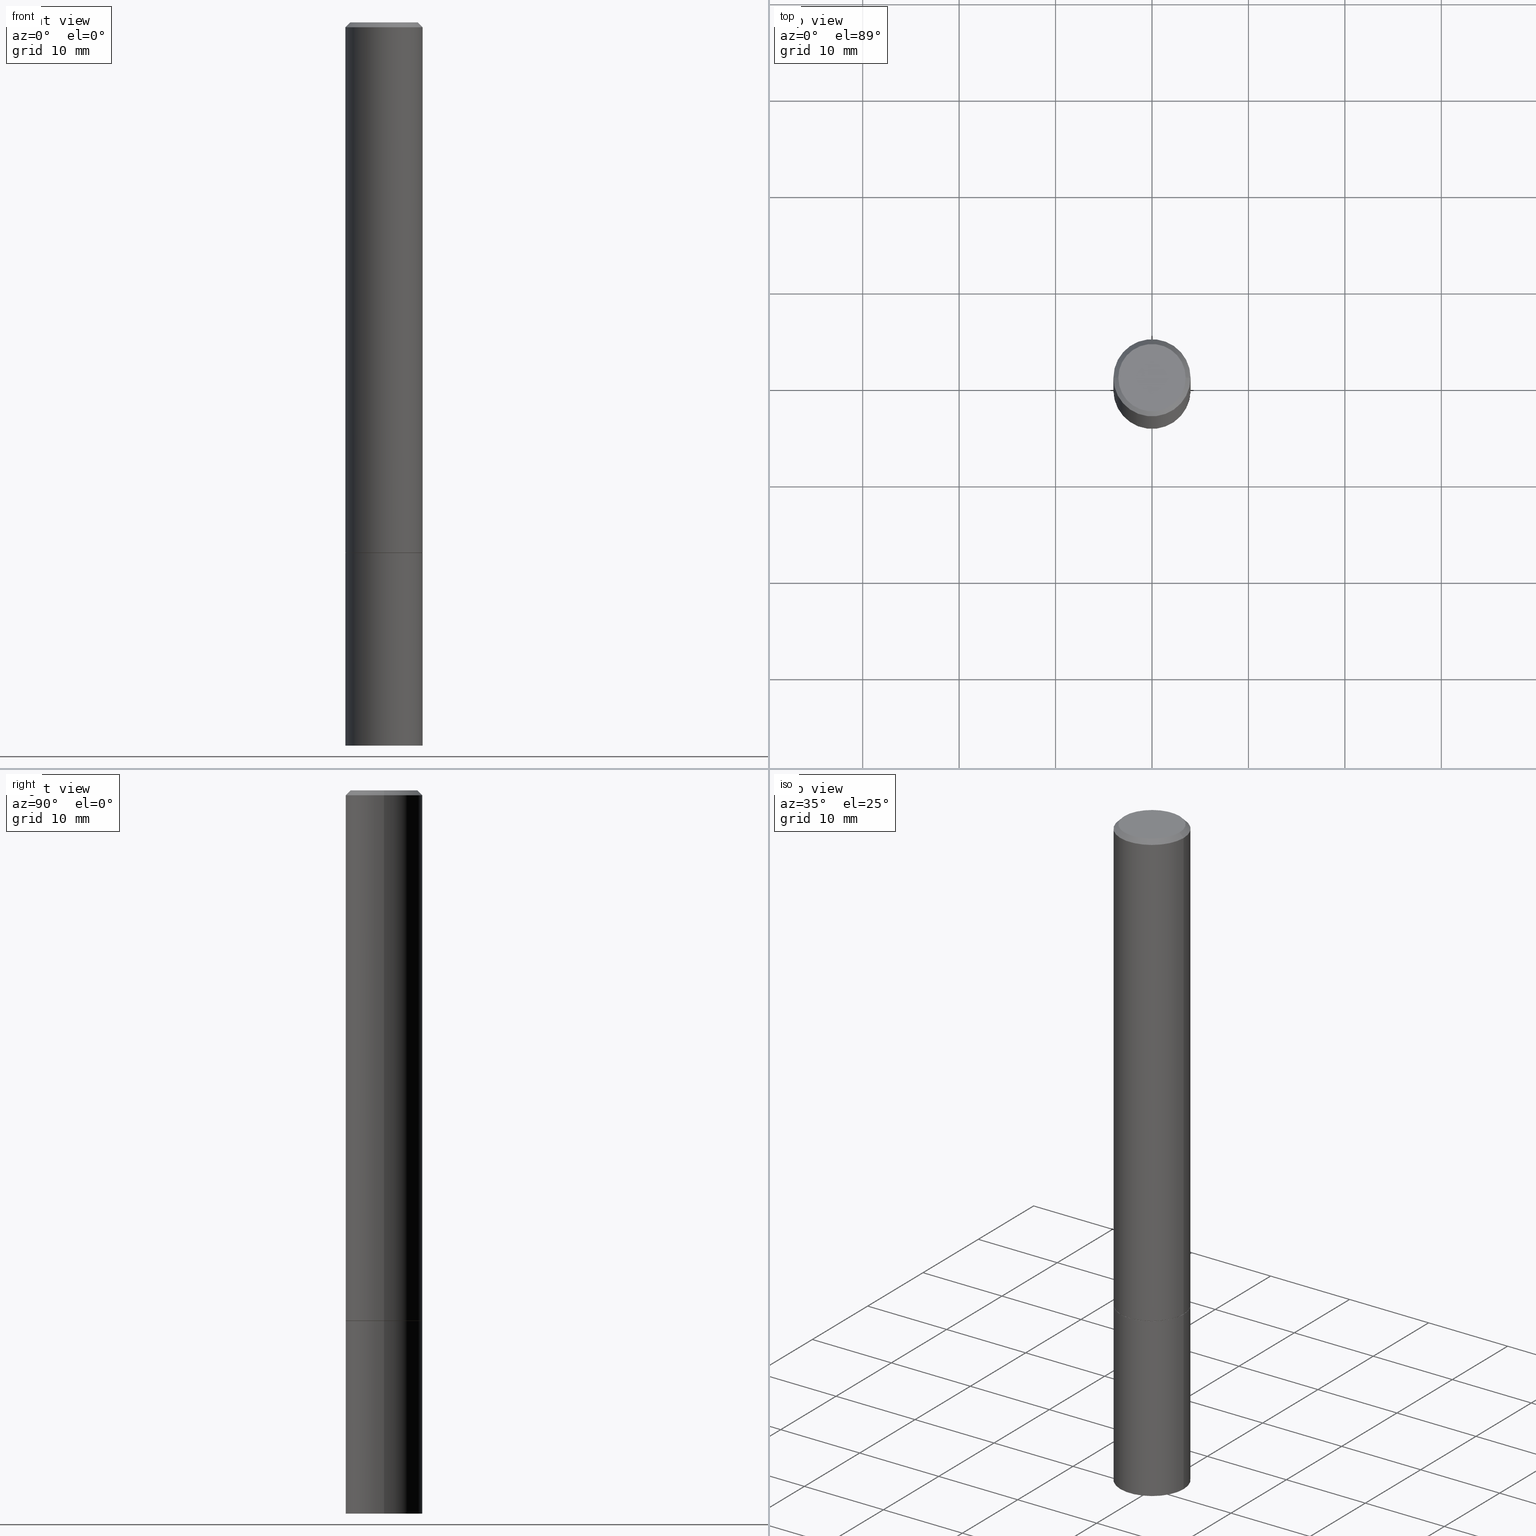
[diagram: canonical four-view strip — front | top / right | iso, engineering-drawing reading convention]
A machine part, canonical four-view strip (front | top / right | iso — engineering-drawing reading convention). The complete STEP part file that produces these views, byte-faithful:
ISO-10303-21;
HEADER;
FILE_DESCRIPTION (( 'STEP AP203' ),
    '1' );
FILE_NAME ('74349.STEP',
    '2024-02-29T08:58:05',
    ( '' ),
    ( '' ),
    'SwSTEP 2.0',
    'SolidWorks 2023',
    '' );
FILE_SCHEMA (( 'CONFIG_CONTROL_DESIGN' ));
ENDSEC;

DATA;
#1 = DATE_AND_TIME ( #186, #85 ) ;
#2 = CC_DESIGN_PERSON_AND_ORGANIZATION_ASSIGNMENT ( #351, #265, ( #4 ) ) ;
#3 = CARTESIAN_POINT ( 'NONE',  ( 0.1575000000000000011, -8.660270312866534114E-15, -2.165399999999999991 ) ) ;
#4 = PRODUCT ( '74349', '74349', '', ( #341 ) ) ;
#5 = CIRCLE ( 'NONE', #336, 0.1374999999999997058 ) ;
#6 = EDGE_CURVE ( 'NONE', #172, #357, #349, .T. ) ;
#7 = AXIS2_PLACEMENT_3D ( 'NONE', #13, #110, #235 ) ;
#8 = EDGE_LOOP ( 'NONE', ( #332, #84 ) ) ;
#9 = DIMENSIONAL_EXPONENTS ( 1.000000000000000000, 0.000000000000000000, 0.000000000000000000, 0.000000000000000000, 0.000000000000000000, 0.000000000000000000, 0.000000000000000000 ) ;
#10 = LINE ( 'NONE', #278, #262 ) ;
#11 = DIRECTION ( 'NONE',  ( 1.000000000000000000, -6.982962677686265922E-15, 0.000000000000000000 ) ) ;
#12 = EDGE_LOOP ( 'NONE', ( #157, #55 ) ) ;
#13 = CARTESIAN_POINT ( 'NONE',  ( 0.000000000000000000, 0.000000000000000000, 0.000000000000000000 ) ) ;
#14 = AXIS2_PLACEMENT_3D ( 'NONE', #127, #251, #131 ) ;
#15 = DIRECTION ( 'NONE',  ( -2.445468806185136597E-29, 3.491481338843145583E-15, 1.000000000000000000 ) ) ;
#16 = CARTESIAN_POINT ( 'NONE',  ( 0.1575000000000000011, -1.099816621735586889E-15, 7.679978421878598033E-30 ) ) ;
#17 = ORGANIZATION ( 'UNSPECIFIED', 'UNSPECIFIED', '' ) ;
#18 = FACE_OUTER_BOUND ( 'NONE', #360, .T. ) ;
#19 = COORDINATED_UNIVERSAL_TIME_OFFSET ( 5, 0, .BEHIND. ) ;
#20 = ADVANCED_FACE ( 'NONE', ( #199 ), #282, .F. ) ;
#21 = DIRECTION ( 'NONE',  ( -2.445468806185136597E-29, 3.491481338843145583E-15, 1.000000000000000000 ) ) ;
#22 = APPROVAL_ROLE ( '' ) ;
#23 = DIRECTION ( 'NONE',  ( -2.445468806185136597E-29, 3.491481338843145583E-15, 1.000000000000000000 ) ) ;
#24 = APPROVAL_DATE_TIME ( #264, #149 ) ;
#25 = ORIENTED_EDGE ( 'NONE', *, *, #223, .F. ) ;
#26 = ORIENTED_EDGE ( 'NONE', *, *, #118, .F. ) ;
#27 = EDGE_CURVE ( 'NONE', #113, #150, #318, .T. ) ;
#28 = APPROVAL_DATE_TIME ( #356, #165 ) ;
#29 = ORIENTED_EDGE ( 'NONE', *, *, #179, .T. ) ;
#30 = LINE ( 'NONE', #36, #169 ) ;
#31 = ADVANCED_FACE ( 'NONE', ( #168 ), #41, .T. ) ;
#32 = DIRECTION ( 'NONE',  ( 2.445468806185136597E-29, -3.491481338843145583E-15, -1.000000000000000000 ) ) ;
#33 = ORIENTED_EDGE ( 'NONE', *, *, #118, .T. ) ;
#34 = AXIS2_PLACEMENT_3D ( 'NONE', #124, #363, #217 ) ;
#35 = DIRECTION ( 'NONE',  ( 1.000000000000000000, -6.982962677686265922E-15, 4.876176775795935793E-29 ) ) ;
#36 = CARTESIAN_POINT ( 'NONE',  ( -0.1574999999999998346, 1.119104808822156617E-15, -7.747322767151467176E-30 ) ) ;
#37 = APPROVAL_PERSON_ORGANIZATION ( #94, #149, #244 ) ;
#38 = CC_DESIGN_SECURITY_CLASSIFICATION ( #303, ( #65 ) ) ;
#39 = FACE_OUTER_BOUND ( 'NONE', #255, .T. ) ;
#40 = LINE ( 'NONE', #322, #78 ) ;
#41 = CONICAL_SURFACE ( 'NONE', #231, 0.1574999999999996958, 0.7853981633974471688 ) ;
#42 = APPROVAL_PERSON_ORGANIZATION ( #99, #299, #211 ) ;
#43 = PERSON_AND_ORGANIZATION_ROLE ( 'creator' ) ;
#44 = PERSON_AND_ORGANIZATION ( #324, #17 ) ;
#45 = CARTESIAN_POINT ( 'NONE',  ( 0.1575000000000000011, -1.140946271907162522E-14, -2.952799999999999869 ) ) ;
#46 = CARTESIAN_POINT ( 'NONE',  ( 4.890937612370282792E-31, -6.982962677686303935E-17, -0.02000000000000003858 ) ) ;
#47 = EDGE_LOOP ( 'NONE', ( #272, #361, #365, #76 ) ) ;
#48 = FACE_OUTER_BOUND ( 'NONE', #276, .T. ) ;
#49 = AXIS2_PLACEMENT_3D ( 'NONE', #50, #138, #281 ) ;
#50 = CARTESIAN_POINT ( 'NONE',  ( 9.601573681818595033E-16, 0.1374999999999997058, -4.779444278458812147E-16 ) ) ;
#51 = EDGE_CURVE ( 'NONE', #188, #163, #277, .T. ) ;
#52 = DIRECTION ( 'NONE',  ( 1.000000000000000000, 0.000000000000000000, 0.000000000000000000 ) ) ;
#53 = LINE ( 'NONE', #340, #64 ) ;
#54 = DIRECTION ( 'NONE',  ( 1.000000000000000000, -6.982962677686265922E-15, 4.876176775795935232E-29 ) ) ;
#55 = ORIENTED_EDGE ( 'NONE', *, *, #208, .F. ) ;
#56 = MANIFOLD_SOLID_BREP ( 'Body-Move/Copy2[1]', #115 ) ;
#57 = CARTESIAN_POINT ( 'NONE',  ( 5.292972684107108742E-29, -7.556962209792102838E-15, -2.164399999999999658 ) ) ;
#58 = CC_DESIGN_APPROVAL ( #149, ( #190 ) ) ;
#59 = DIRECTION ( 'NONE',  ( -2.445468806185136877E-29, 3.491481338843145188E-15, 1.000000000000000000 ) ) ;
#60 = CARTESIAN_POINT ( 'NONE',  ( 1.099816621735639545E-15, 0.1574999999999924516, -2.165400000000000436 ) ) ;
#61 = ORIENTED_EDGE ( 'NONE', *, *, #27, .F. ) ;
#62 = EDGE_CURVE ( 'NONE', #333, #81, #5, .T. ) ;
#63 = MANIFOLD_SOLID_BREP ( 'Body-Move/Copy2[2]', #326 ) ;
#64 = VECTOR ( 'NONE', #228, 39.37007874015748143 ) ;
#65 = PRODUCT_DEFINITION_FORMATION_WITH_SPECIFIED_SOURCE ( 'ANY', '', #4, .NOT_KNOWN. ) ;
#66 = CC_DESIGN_DATE_AND_TIME_ASSIGNMENT ( #213, #335, ( #303 ) ) ;
#67 = PERSON_AND_ORGANIZATION ( #324, #17 ) ;
#68 = PRODUCT_DEFINITION_SHAPE ( 'NONE', 'NONE',  #190 ) ;
#69 = ORIENTED_EDGE ( 'NONE', *, *, #287, .T. ) ;
#70 = VERTEX_POINT ( 'NONE', #256 ) ;
#71 = PERSON_AND_ORGANIZATION ( #324, #17 ) ;
#72 = PRODUCT_RELATED_PRODUCT_CATEGORY ( 'detail', '', ( #4 ) ) ;
#73 = CONICAL_SURFACE ( 'NONE', #364, 0.1565000000000000002, 0.7853981633973801113 ) ;
#74 = APPLICATION_PROTOCOL_DEFINITION ( 'international standard', 'config_control_design', 1994, #198 ) ;
#75 = COORDINATED_UNIVERSAL_TIME_OFFSET ( 5, 0, .BEHIND. ) ;
#76 = ORIENTED_EDGE ( 'NONE', *, *, #128, .F. ) ;
#77 = EDGE_LOOP ( 'NONE', ( #218, #125, #263, #227 ) ) ;
#78 = VECTOR ( 'NONE', #178, 39.37007874015748143 ) ;
#79 = DIRECTION ( 'NONE',  ( 1.000000000000000000, -6.982962677686265922E-15, 0.000000000000000000 ) ) ;
#80 = CARTESIAN_POINT ( 'NONE',  ( 0.000000000000000000, 0.000000000000000000, 0.000000000000000000 ) ) ;
#81 = VERTEX_POINT ( 'NONE', #194 ) ;
#82 = LINE ( 'NONE', #200, #327 ) ;
#83 = ADVANCED_FACE ( 'NONE', ( #250 ), #105, .F. ) ;
#84 = ORIENTED_EDGE ( 'NONE', *, *, #290, .T. ) ;
#85 = LOCAL_TIME ( 3, 58, 5.000000000000000000, #248 ) ;
#86 = DIRECTION ( 'NONE',  ( -2.445468806185136877E-29, 3.491481338843145188E-15, 1.000000000000000000 ) ) ;
#87 = CC_DESIGN_PERSON_AND_ORGANIZATION_ASSIGNMENT ( #44, #192, ( #65 ) ) ;
#88 = DIRECTION ( 'NONE',  ( -2.445468806185136597E-29, 3.491481338843145583E-15, 1.000000000000000000 ) ) ;
#89 = AXIS2_PLACEMENT_3D ( 'NONE', #184, #193, #359 ) ;
#90 = DIRECTION ( 'NONE',  ( -1.000000000000000000, 6.982962677686265922E-15, -4.876176775795935793E-29 ) ) ;
#91 = CC_DESIGN_DATE_AND_TIME_ASSIGNMENT ( #267, #155, ( #190 ) ) ;
#92 = APPROVAL_DATE_TIME ( #1, #299 ) ;
#93 = FACE_OUTER_BOUND ( 'NONE', #153, .T. ) ;
#94 = PERSON_AND_ORGANIZATION ( #324, #17 ) ;
#95 = DIRECTION ( 'NONE',  ( -1.000000000000000000, 6.982962677686265922E-15, -4.876176775795935793E-29 ) ) ;
#96 = COORDINATED_UNIVERSAL_TIME_OFFSET ( 5, 0, .BEHIND. ) ;
#97 = AXIS2_PLACEMENT_3D ( 'NONE', #206, #321, #177 ) ;
#98 = VERTEX_POINT ( 'NONE', #203 ) ;
#99 = PERSON_AND_ORGANIZATION ( #324, #17 ) ;
#100 = EDGE_CURVE ( 'NONE', #333, #172, #53, .T. ) ;
#101 =( NAMED_UNIT ( * ) SI_UNIT ( $, .STERADIAN. ) SOLID_ANGLE_UNIT ( ) );
#102 = AXIS2_PLACEMENT_3D ( 'NONE', #196, #230, #166 ) ;
#103 = AXIS2_PLACEMENT_3D ( 'NONE', #242, #185, #95 ) ;
#104 = ORIENTED_EDGE ( 'NONE', *, *, #51, .F. ) ;
#105 = PLANE ( 'NONE',  #49 ) ;
#106 = FACE_OUTER_BOUND ( 'NONE', #77, .T. ) ;
#107 = CONICAL_SURFACE ( 'NONE', #347, 0.1574999999999996958, 0.7853981633974471688 ) ;
#108 = EDGE_CURVE ( 'NONE', #150, #172, #30, .T. ) ;
#109 = CARTESIAN_POINT ( 'NONE',  ( 5.295418152913294345E-29, -7.560453691130947423E-15, -2.165399999999999991 ) ) ;
#110 = DIRECTION ( 'NONE',  ( -2.445468806185136597E-29, 3.491481338843145583E-15, 1.000000000000000000 ) ) ;
#111 = CIRCLE ( 'NONE', #117, 0.1575000000000000011 ) ;
#112 = ADVANCED_FACE ( 'NONE', ( #48 ), #307, .T. ) ;
#113 = VERTEX_POINT ( 'NONE', #197 ) ;
#114 = DIRECTION ( 'NONE',  ( 1.000000000000000000, -6.982962677686267499E-15, 0.000000000000000000 ) ) ;
#115 = CLOSED_SHELL ( 'NONE', ( #317, #258, #325, #312 ) ) ;
#116 = SHAPE_DEFINITION_REPRESENTATION ( #68, #204 ) ;
#117 = AXIS2_PLACEMENT_3D ( 'NONE', #143, #88, #173 ) ;
#118 = EDGE_CURVE ( 'NONE', #188, #137, #159, .T. ) ;
#119 = ORIENTED_EDGE ( 'NONE', *, *, #287, .F. ) ;
#120 = SECURITY_CLASSIFICATION_LEVEL ( 'unclassified' ) ;
#121 = LINE ( 'NONE', #246, #319 ) ;
#122 = EDGE_LOOP ( 'NONE', ( #26, #337, #296, #316 ) ) ;
#123 = CALENDAR_DATE ( 2024, 29, 2 ) ;
#124 = CARTESIAN_POINT ( 'NONE',  ( 5.292972684107108742E-29, -7.556962209792102838E-15, -2.164399999999999658 ) ) ;
#125 = ORIENTED_EDGE ( 'NONE', *, *, #140, .T. ) ;
#126 = COORDINATED_UNIVERSAL_TIME_OFFSET ( 5, 0, .BEHIND. ) ;
#127 = CARTESIAN_POINT ( 'NONE',  ( 5.295418152913294345E-29, -7.560453691130947423E-15, -2.165399999999999991 ) ) ;
#128 = EDGE_CURVE ( 'NONE', #113, #357, #10, .T. ) ;
#129 = DIRECTION ( 'NONE',  ( 1.000000000000000000, -6.982962677686268288E-15, 0.000000000000000000 ) ) ;
#130 = CARTESIAN_POINT ( 'NONE',  ( 0.000000000000000000, 0.000000000000000000, 0.000000000000000000 ) ) ;
#131 = DIRECTION ( 'NONE',  ( 1.000000000000000000, -6.982962677686267499E-15, 0.000000000000000000 ) ) ;
#132 = CIRCLE ( 'NONE', #97, 0.1565000000000000002 ) ;
#133 = LOCAL_TIME ( 3, 58, 5.000000000000000000, #19 ) ;
#134 = ORIENTED_EDGE ( 'NONE', *, *, #6, .F. ) ;
#135 = ADVANCED_FACE ( 'NONE', ( #106 ), #107, .T. ) ;
#136 = CARTESIAN_POINT ( 'NONE',  ( -0.1575000000000000011, 1.119104808822157801E-15, -7.747322767151475583E-30 ) ) ;
#137 = VERTEX_POINT ( 'NONE', #229 ) ;
#138 = DIRECTION ( 'NONE',  ( 2.438088387897960049E-29, -3.491481338843145188E-15, -1.000000000000000000 ) ) ;
#139 = DIRECTION ( 'NONE',  ( 1.000000000000000000, -6.982962677686267499E-15, 0.000000000000000000 ) ) ;
#140 = EDGE_CURVE ( 'NONE', #81, #357, #82, .T. ) ;
#141 =( GEOMETRIC_REPRESENTATION_CONTEXT ( 3 ) GLOBAL_UNCERTAINTY_ASSIGNED_CONTEXT ( ( #320 ) ) GLOBAL_UNIT_ASSIGNED_CONTEXT ( ( #245, #161, #101 ) ) REPRESENTATION_CONTEXT ( 'NONE', 'WORKASPACE' ) );
#142 = CYLINDRICAL_SURFACE ( 'NONE', #257, 0.1575000000000000011 ) ;
#143 = CARTESIAN_POINT ( 'NONE',  ( 7.220980290903470182E-29, -1.030964609733603853E-14, -2.952799999999999869 ) ) ;
#144 = DIRECTION ( 'NONE',  ( 1.000000000000000000, -6.982962677686265922E-15, 4.876176775795935232E-29 ) ) ;
#145 = EDGE_CURVE ( 'NONE', #70, #113, #40, .T. ) ;
#146 = CONICAL_SURFACE ( 'NONE', #175, 0.1565000000000000002, 0.7853981633973801113 ) ;
#147 = CC_DESIGN_APPROVAL ( #165, ( #303 ) ) ;
#148 = CARTESIAN_POINT ( 'NONE',  ( -0.1574999999999996958, 1.029986994958721618E-15, -0.02000000000000003858 ) ) ;
#149 = APPROVAL ( #353, 'UNSPECIFIED' ) ;
#150 = VERTEX_POINT ( 'NONE', #243 ) ;
#151 = AXIS2_PLACEMENT_3D ( 'NONE', #209, #164, #221 ) ;
#152 = AXIS2_PLACEMENT_3D ( 'NONE', #80, #310, #54 ) ;
#153 = EDGE_LOOP ( 'NONE', ( #181, #104 ) ) ;
#154 = ORIENTED_EDGE ( 'NONE', *, *, #279, .F. ) ;
#155 = DATE_TIME_ROLE ( 'creation_date' ) ;
#156 = DIRECTION ( 'NONE',  ( 2.445468806185136597E-29, -3.491481338843145583E-15, -1.000000000000000000 ) ) ;
#157 = ORIENTED_EDGE ( 'NONE', *, *, #355, .F. ) ;
#158 = EDGE_CURVE ( 'NONE', #357, #172, #285, .T. ) ;
#159 = LINE ( 'NONE', #136, #354 ) ;
#160 = CIRCLE ( 'NONE', #89, 0.1374999999999997058 ) ;
#161 =( NAMED_UNIT ( * ) PLANE_ANGLE_UNIT ( ) SI_UNIT ( $, .RADIAN. ) );
#162 = DIRECTION ( 'NONE',  ( -1.000000000000000000, 6.982962677686265922E-15, 0.000000000000000000 ) ) ;
#163 = VERTEX_POINT ( 'NONE', #45 ) ;
#164 = DIRECTION ( 'NONE',  ( -2.445468806185136597E-29, 3.491481338843145583E-15, 1.000000000000000000 ) ) ;
#165 = APPROVAL ( #219, 'UNSPECIFIED' ) ;
#166 = DIRECTION ( 'NONE',  ( 1.000000000000000000, -6.982962677686265922E-15, 4.876176775795935793E-29 ) ) ;
#167 = ORIENTED_EDGE ( 'NONE', *, *, #62, .F. ) ;
#168 = FACE_OUTER_BOUND ( 'NONE', #311, .T. ) ;
#169 = VECTOR ( 'NONE', #284, 39.37007874015748143 ) ;
#170 = DIRECTION ( 'NONE',  ( 1.000000000000000000, -6.982962677686265922E-15, 4.876173381029110692E-29 ) ) ;
#171 = CARTESIAN_POINT ( 'NONE',  ( -0.1374999999999997058, 9.950721815702905608E-16, 4.268512490093574228E-18 ) ) ;
#172 = VERTEX_POINT ( 'NONE', #148 ) ;
#173 = DIRECTION ( 'NONE',  ( 1.000000000000000000, -6.982962677686261977E-15, 0.000000000000000000 ) ) ;
#174 = DIRECTION ( 'NONE',  ( -2.445468806185136597E-29, 3.491481338843145583E-15, 1.000000000000000000 ) ) ;
#175 = AXIS2_PLACEMENT_3D ( 'NONE', #293, #239, #114 ) ;
#176 = APPLICATION_CONTEXT ( 'configuration controlled 3d designs of mechanical parts and assemblies' ) ;
#177 = DIRECTION ( 'NONE',  ( 1.000000000000000000, -6.982962677686267499E-15, 0.000000000000000000 ) ) ;
#178 = DIRECTION ( 'NONE',  ( 0.7071067811864992780, -2.468850131081751401E-15, 0.7071067811865957564 ) ) ;
#179 = EDGE_CURVE ( 'NONE', #81, #333, #160, .T. ) ;
#180 = CIRCLE ( 'NONE', #34, 0.1574999999999999178 ) ;
#181 = ORIENTED_EDGE ( 'NONE', *, *, #216, .F. ) ;
#182 = CC_DESIGN_PERSON_AND_ORGANIZATION_ASSIGNMENT ( #331, #298, ( #190 ) ) ;
#183 = APPROVAL_STATUS ( 'not_yet_approved' ) ;
#184 = CARTESIAN_POINT ( 'NONE',  ( -1.043851414335219820E-46, 1.490343170380447200E-32, 4.268512490100411279E-18 ) ) ;
#185 = DIRECTION ( 'NONE',  ( 2.438088387897960049E-29, -3.491481338843145188E-15, -1.000000000000000000 ) ) ;
#186 = CALENDAR_DATE ( 2024, 29, 2 ) ;
#187 = CIRCLE ( 'NONE', #342, 0.1575000000000000011 ) ;
#188 = VERTEX_POINT ( 'NONE', #274 ) ;
#189 = PERSON_AND_ORGANIZATION_ROLE ( 'classification_officer' ) ;
#190 = PRODUCT_DEFINITION ( 'UNKNOWN', '', #65, #345 ) ;
#191 = ORIENTED_EDGE ( 'NONE', *, *, #100, .T. ) ;
#192 = PERSON_AND_ORGANIZATION_ROLE ( 'design_supplier' ) ;
#193 = DIRECTION ( 'NONE',  ( -2.445468806185136597E-29, 3.491481338843145583E-15, 1.000000000000000000 ) ) ;
#194 = CARTESIAN_POINT ( 'NONE',  ( 0.1374999999999997058, -1.046838268059730322E-15, 4.268512490107428597E-18 ) ) ;
#195 = AXIS2_PLACEMENT_3D ( 'NONE', #220, #338, #129 ) ;
#196 = CARTESIAN_POINT ( 'NONE',  ( 5.295418152913294345E-29, -7.560453691130947423E-15, -2.165399999999999991 ) ) ;
#197 = CARTESIAN_POINT ( 'NONE',  ( 0.1574999999999999178, -8.656778831527689529E-15, -2.164399999999999658 ) ) ;
#198 = APPLICATION_CONTEXT ( 'configuration controlled 3d designs of mechanical parts and assemblies' ) ;
#199 = FACE_OUTER_BOUND ( 'NONE', #12, .T. ) ;
#200 = CARTESIAN_POINT ( 'NONE',  ( 0.1574999999999996958, -1.150358061425877105E-15, -0.02000000000000003858 ) ) ;
#201 = AXIS2_PLACEMENT_3D ( 'NONE', #57, #305, #11 ) ;
#202 = ORIENTED_EDGE ( 'NONE', *, *, #279, .T. ) ;
#203 = CARTESIAN_POINT ( 'NONE',  ( -0.1565000000000000002, -6.443155855318168425E-15, -2.165399999999999991 ) ) ;
#204 = ADVANCED_BREP_SHAPE_REPRESENTATION ( '74349', ( #56, #63, #238 ), #141 ) ;
#205 = FACE_OUTER_BOUND ( 'NONE', #8, .T. ) ;
#206 = CARTESIAN_POINT ( 'NONE',  ( 5.295418152913294345E-29, -7.560453691130947423E-15, -2.165399999999999991 ) ) ;
#207 = DIRECTION ( 'NONE',  ( 0.7071067811865466846, -7.319954787623252890E-15, -0.7071067811865483499 ) ) ;
#208 = EDGE_CURVE ( 'NONE', #98, #70, #225, .T. ) ;
#209 = CARTESIAN_POINT ( 'NONE',  ( 7.220980290903470182E-29, -1.030964609733603853E-14, -2.952799999999999869 ) ) ;
#210 = AXIS2_PLACEMENT_3D ( 'NONE', #286, #309, #79 ) ;
#211 = APPROVAL_ROLE ( '' ) ;
#212 = PLANE ( 'NONE',  #103 ) ;
#213 = DATE_AND_TIME ( #358, #233 ) ;
#214 = DIRECTION ( 'NONE',  ( -0.7071067811864992780, 7.493145998870180611E-15, 0.7071067811865957564 ) ) ;
#215 = LOCAL_TIME ( 3, 58, 5.000000000000000000, #75 ) ;
#216 = EDGE_CURVE ( 'NONE', #163, #188, #111, .T. ) ;
#217 = DIRECTION ( 'NONE',  ( 1.000000000000000000, -6.982962677686265922E-15, 0.000000000000000000 ) ) ;
#218 = ORIENTED_EDGE ( 'NONE', *, *, #179, .F. ) ;
#219 = APPROVAL_STATUS ( 'not_yet_approved' ) ;
#220 = CARTESIAN_POINT ( 'NONE',  ( 5.295418152913294345E-29, -7.560453691130947423E-15, -2.165399999999999991 ) ) ;
#221 = DIRECTION ( 'NONE',  ( 1.000000000000000000, -6.982962677686261977E-15, 0.000000000000000000 ) ) ;
#222 = APPLICATION_PROTOCOL_DEFINITION ( 'international standard', 'config_control_design', 1994, #176 ) ;
#223 = EDGE_CURVE ( 'NONE', #163, #288, #292, .T. ) ;
#224 = CARTESIAN_POINT ( 'NONE',  ( -1.043851414335219820E-46, 1.490343170380447200E-32, 4.268512490100411279E-18 ) ) ;
#225 = CIRCLE ( 'NONE', #14, 0.1565000000000000002 ) ;
#226 = FACE_OUTER_BOUND ( 'NONE', #122, .T. ) ;
#227 = ORIENTED_EDGE ( 'NONE', *, *, #100, .F. ) ;
#228 = DIRECTION ( 'NONE',  ( -0.7071067811865466846, 2.468850131082247989E-15, -0.7071067811865483499 ) ) ;
#229 = CARTESIAN_POINT ( 'NONE',  ( -0.1575000000000000011, -7.815945085411336161E-15, -2.165399999999999991 ) ) ;
#230 = DIRECTION ( 'NONE',  ( -2.438088387897960049E-29, 3.491481338843145188E-15, 1.000000000000000000 ) ) ;
#231 = AXIS2_PLACEMENT_3D ( 'NONE', #46, #156, #162 ) ;
#232 = AXIS2_PLACEMENT_3D ( 'NONE', #130, #252, #35 ) ;
#233 = LOCAL_TIME ( 3, 58, 5.000000000000000000, #96 ) ;
#234 = FACE_OUTER_BOUND ( 'NONE', #47, .T. ) ;
#235 = DIRECTION ( 'NONE',  ( 1.000000000000000000, -6.982962677686265922E-15, 4.876176775795935793E-29 ) ) ;
#236 = CC_DESIGN_PERSON_AND_ORGANIZATION_ASSIGNMENT ( #67, #189, ( #303 ) ) ;
#237 =( LENGTH_UNIT ( ) NAMED_UNIT ( * ) SI_UNIT ( $, .METRE. ) );
#238 = AXIS2_PLACEMENT_3D ( 'NONE', #362, #275, #52 ) ;
#239 = DIRECTION ( 'NONE',  ( -2.445468806185136597E-29, 3.491481338843145583E-15, 1.000000000000000000 ) ) ;
#240 = CALENDAR_DATE ( 2024, 29, 2 ) ;
#241 = AXIS2_PLACEMENT_3D ( 'NONE', #60, #291, #90 ) ;
#242 = CARTESIAN_POINT ( 'NONE',  ( 1.099816621735659069E-15, 0.1574999999999896760, -2.952800000000000313 ) ) ;
#243 = CARTESIAN_POINT ( 'NONE',  ( -0.1574999999999999178, -2.694291109462323887E-15, -2.164399999999999658 ) ) ;
#244 = APPROVAL_ROLE ( '' ) ;
#245 =( CONVERSION_BASED_UNIT ( 'INCH', #328 ) LENGTH_UNIT ( ) NAMED_UNIT ( #9 ) );
#246 = CARTESIAN_POINT ( 'NONE',  ( -0.1565000000000000002, -6.448454309666390039E-15, -2.165399999999999991 ) ) ;
#247 = ADVANCED_FACE ( 'NONE', ( #323 ), #146, .T. ) ;
#248 = COORDINATED_UNIVERSAL_TIME_OFFSET ( 5, 0, .BEHIND. ) ;
#249 = ORIENTED_EDGE ( 'NONE', *, *, #62, .T. ) ;
#250 = FACE_OUTER_BOUND ( 'NONE', #304, .T. ) ;
#251 = DIRECTION ( 'NONE',  ( -2.445468806185136597E-29, 3.491481338843145583E-15, 1.000000000000000000 ) ) ;
#252 = DIRECTION ( 'NONE',  ( -2.445468806185136597E-29, 3.491481338843145583E-15, 1.000000000000000000 ) ) ;
#253 = CC_DESIGN_APPROVAL ( #299, ( #65 ) ) ;
#254 = ORIENTED_EDGE ( 'NONE', *, *, #355, .T. ) ;
#255 = EDGE_LOOP ( 'NONE', ( #297, #33, #302, #25 ) ) ;
#256 = CARTESIAN_POINT ( 'NONE',  ( 0.1565000000000000002, -8.653287350188848100E-15, -2.165399999999999991 ) ) ;
#257 = AXIS2_PLACEMENT_3D ( 'NONE', #259, #174, #144 ) ;
#258 = ADVANCED_FACE ( 'NONE', ( #93 ), #212, .T. ) ;
#259 = CARTESIAN_POINT ( 'NONE',  ( 0.000000000000000000, 0.000000000000000000, 0.000000000000000000 ) ) ;
#260 = ORIENTED_EDGE ( 'NONE', *, *, #208, .T. ) ;
#261 = CARTESIAN_POINT ( 'NONE',  ( 0.1574999999999996958, -1.150358061425877105E-15, -0.02000000000000003858 ) ) ;
#262 = VECTOR ( 'NONE', #308, 39.37007874015748143 ) ;
#263 = ORIENTED_EDGE ( 'NONE', *, *, #158, .T. ) ;
#264 = DATE_AND_TIME ( #273, #215 ) ;
#265 = PERSON_AND_ORGANIZATION_ROLE ( 'design_owner' ) ;
#266 = EDGE_CURVE ( 'NONE', #288, #137, #187, .T. ) ;
#267 = DATE_AND_TIME ( #240, #314 ) ;
#268 = CARTESIAN_POINT ( 'NONE',  ( 5.295418152913294345E-29, -7.560453691130947423E-15, -2.165399999999999991 ) ) ;
#269 = ORIENTED_EDGE ( 'NONE', *, *, #6, .T. ) ;
#270 = ORIENTED_EDGE ( 'NONE', *, *, #128, .T. ) ;
#271 = PERSON_AND_ORGANIZATION ( #324, #17 ) ;
#272 = ORIENTED_EDGE ( 'NONE', *, *, #27, .T. ) ;
#273 = CALENDAR_DATE ( 2024, 29, 2 ) ;
#274 = CARTESIAN_POINT ( 'NONE',  ( -0.1575000000000000011, -7.815945085411336161E-15, -2.952799999999999869 ) ) ;
#275 = DIRECTION ( 'NONE',  ( 0.000000000000000000, 0.000000000000000000, 1.000000000000000000 ) ) ;
#276 = EDGE_LOOP ( 'NONE', ( #280, #69, #270, #134 ) ) ;
#277 = CIRCLE ( 'NONE', #151, 0.1575000000000000011 ) ;
#278 = CARTESIAN_POINT ( 'NONE',  ( 0.1574999999999998346, -1.099816621735585705E-15, 7.679978421878591026E-30 ) ) ;
#279 = EDGE_CURVE ( 'NONE', #98, #150, #121, .T. ) ;
#280 = ORIENTED_EDGE ( 'NONE', *, *, #108, .F. ) ;
#281 = DIRECTION ( 'NONE',  ( -1.000000000000000000, 6.982962677686265922E-15, -4.876176775795935793E-29 ) ) ;
#282 = PLANE ( 'NONE',  #102 ) ;
#283 = CARTESIAN_POINT ( 'NONE',  ( 4.890937612370282792E-31, -6.982962677686303935E-17, -0.02000000000000003858 ) ) ;
#284 = DIRECTION ( 'NONE',  ( -2.445468806185136877E-29, 3.491481338843145188E-15, 1.000000000000000000 ) ) ;
#285 = CIRCLE ( 'NONE', #350, 0.1574999999999996958 ) ;
#286 = CARTESIAN_POINT ( 'NONE',  ( 4.890937612370282792E-31, -6.982962677686303935E-17, -0.02000000000000003858 ) ) ;
#287 = EDGE_CURVE ( 'NONE', #150, #113, #180, .T. ) ;
#288 = VERTEX_POINT ( 'NONE', #3 ) ;
#289 = PLANE ( 'NONE',  #241 ) ;
#290 = EDGE_CURVE ( 'NONE', #137, #288, #306, .T. ) ;
#291 = DIRECTION ( 'NONE',  ( 2.438088387897960049E-29, -3.491481338843145188E-15, -1.000000000000000000 ) ) ;
#292 = LINE ( 'NONE', #16, #301 ) ;
#293 = CARTESIAN_POINT ( 'NONE',  ( 5.295418152913294345E-29, -7.560453691130947423E-15, -2.165399999999999991 ) ) ;
#294 = CC_DESIGN_PERSON_AND_ORGANIZATION_ASSIGNMENT ( #271, #43, ( #65 ) ) ;
#295 = CARTESIAN_POINT ( 'NONE',  ( 4.890937612370282792E-31, -6.982962677686303935E-17, -0.02000000000000003858 ) ) ;
#296 = ORIENTED_EDGE ( 'NONE', *, *, #223, .T. ) ;
#297 = ORIENTED_EDGE ( 'NONE', *, *, #216, .T. ) ;
#298 = PERSON_AND_ORGANIZATION_ROLE ( 'creator' ) ;
#299 = APPROVAL ( #183, 'UNSPECIFIED' ) ;
#300 = DIRECTION ( 'NONE',  ( 1.000000000000000000, -6.982962677686268288E-15, 0.000000000000000000 ) ) ;
#301 = VECTOR ( 'NONE', #86, 39.37007874015748143 ) ;
#302 = ORIENTED_EDGE ( 'NONE', *, *, #266, .F. ) ;
#303 = SECURITY_CLASSIFICATION ( '', '', #120 ) ;
#304 = EDGE_LOOP ( 'NONE', ( #249, #29 ) ) ;
#305 = DIRECTION ( 'NONE',  ( -2.445468806185136597E-29, 3.491481338843145583E-15, 1.000000000000000000 ) ) ;
#306 = CIRCLE ( 'NONE', #195, 0.1575000000000000011 ) ;
#307 = CYLINDRICAL_SURFACE ( 'NONE', #232, 0.1574999999999998346 ) ;
#308 = DIRECTION ( 'NONE',  ( -2.445468806185136877E-29, 3.491481338843145188E-15, 1.000000000000000000 ) ) ;
#309 = DIRECTION ( 'NONE',  ( -2.445468806185136597E-29, 3.491481338843145583E-15, 1.000000000000000000 ) ) ;
#310 = DIRECTION ( 'NONE',  ( -2.445468806185136597E-29, 3.491481338843145583E-15, 1.000000000000000000 ) ) ;
#311 = EDGE_LOOP ( 'NONE', ( #329, #167, #191, #269 ) ) ;
#312 = ADVANCED_FACE ( 'NONE', ( #226 ), #344, .T. ) ;
#313 = DIRECTION ( 'NONE',  ( -1.000000000000000000, 6.982962677686265922E-15, 0.000000000000000000 ) ) ;
#314 = LOCAL_TIME ( 3, 58, 5.000000000000000000, #126 ) ;
#315 = CYLINDRICAL_SURFACE ( 'NONE', #7, 0.1574999999999998346 ) ;
#316 = ORIENTED_EDGE ( 'NONE', *, *, #290, .F. ) ;
#317 = ADVANCED_FACE ( 'NONE', ( #39 ), #142, .T. ) ;
#318 = CIRCLE ( 'NONE', #201, 0.1574999999999999178 ) ;
#319 = VECTOR ( 'NONE', #214, 39.37007874015748143 ) ;
#320 = UNCERTAINTY_MEASURE_WITH_UNIT (LENGTH_MEASURE( 1.000000000000000082E-05 ), #245, 'distance_accuracy_value', 'NONE');
#321 = DIRECTION ( 'NONE',  ( -2.445468806185136597E-29, 3.491481338843145583E-15, 1.000000000000000000 ) ) ;
#322 = CARTESIAN_POINT ( 'NONE',  ( 0.1565000000000000002, -8.653287350188848100E-15, -2.165399999999999991 ) ) ;
#323 = FACE_OUTER_BOUND ( 'NONE', #352, .T. ) ;
#324 = PERSON ( 'UNSPECIFIED', 'UNSPECIFIED', 'UNSPECIFIED', ('UNSPECIFIED'), ('UNSPECIFIED'), ('UNSPECIFIED') ) ;
#325 = ADVANCED_FACE ( 'NONE', ( #205 ), #289, .F. ) ;
#326 = CLOSED_SHELL ( 'NONE', ( #330, #348, #135, #31, #112, #247, #20, #83 ) ) ;
#327 = VECTOR ( 'NONE', #207, 39.37007874015748143 ) ;
#328 = LENGTH_MEASURE_WITH_UNIT ( LENGTH_MEASURE( 0.02539999999999999897 ), #237 );
#329 = ORIENTED_EDGE ( 'NONE', *, *, #140, .F. ) ;
#330 = ADVANCED_FACE ( 'NONE', ( #18 ), #73, .T. ) ;
#331 = PERSON_AND_ORGANIZATION ( #324, #17 ) ;
#332 = ORIENTED_EDGE ( 'NONE', *, *, #266, .T. ) ;
#333 = VERTEX_POINT ( 'NONE', #171 ) ;
#334 = DIRECTION ( 'NONE',  ( 1.000000000000000000, -6.982962677686265922E-15, 0.000000000000000000 ) ) ;
#335 = DATE_TIME_ROLE ( 'classification_date' ) ;
#336 = AXIS2_PLACEMENT_3D ( 'NONE', #224, #343, #170 ) ;
#337 = ORIENTED_EDGE ( 'NONE', *, *, #51, .T. ) ;
#338 = DIRECTION ( 'NONE',  ( -2.445468806185136597E-29, 3.491481338843145583E-15, 1.000000000000000000 ) ) ;
#339 = ORIENTED_EDGE ( 'NONE', *, *, #145, .F. ) ;
#340 = CARTESIAN_POINT ( 'NONE',  ( -0.1574999999999996958, 1.029986994958721618E-15, -0.02000000000000003858 ) ) ;
#341 = MECHANICAL_CONTEXT ( 'NONE', #176, 'mechanical' ) ;
#342 = AXIS2_PLACEMENT_3D ( 'NONE', #268, #23, #300 ) ;
#343 = DIRECTION ( 'NONE',  ( -2.445468806185136597E-29, 3.491481338843145583E-15, 1.000000000000000000 ) ) ;
#344 = CYLINDRICAL_SURFACE ( 'NONE', #152, 0.1575000000000000011 ) ;
#345 = DESIGN_CONTEXT ( 'detailed design', #198, 'design' ) ;
#346 = ORIENTED_EDGE ( 'NONE', *, *, #145, .T. ) ;
#347 = AXIS2_PLACEMENT_3D ( 'NONE', #283, #32, #313 ) ;
#348 = ADVANCED_FACE ( 'NONE', ( #234 ), #315, .T. ) ;
#349 = CIRCLE ( 'NONE', #210, 0.1574999999999996958 ) ;
#350 = AXIS2_PLACEMENT_3D ( 'NONE', #295, #21, #334 ) ;
#351 = PERSON_AND_ORGANIZATION ( #324, #17 ) ;
#352 = EDGE_LOOP ( 'NONE', ( #154, #260, #346, #119 ) ) ;
#353 = APPROVAL_STATUS ( 'not_yet_approved' ) ;
#354 = VECTOR ( 'NONE', #59, 39.37007874015748143 ) ;
#355 = EDGE_CURVE ( 'NONE', #70, #98, #132, .T. ) ;
#356 = DATE_AND_TIME ( #123, #133 ) ;
#357 = VERTEX_POINT ( 'NONE', #261 ) ;
#358 = CALENDAR_DATE ( 2024, 29, 2 ) ;
#359 = DIRECTION ( 'NONE',  ( 1.000000000000000000, -6.982962677686265922E-15, 4.876173381029110692E-29 ) ) ;
#360 = EDGE_LOOP ( 'NONE', ( #254, #202, #61, #339 ) ) ;
#361 = ORIENTED_EDGE ( 'NONE', *, *, #108, .T. ) ;
#362 = CARTESIAN_POINT ( 'NONE',  ( 0.000000000000000000, 0.000000000000000000, 0.000000000000000000 ) ) ;
#363 = DIRECTION ( 'NONE',  ( -2.445468806185136597E-29, 3.491481338843145583E-15, 1.000000000000000000 ) ) ;
#364 = AXIS2_PLACEMENT_3D ( 'NONE', #109, #15, #139 ) ;
#365 = ORIENTED_EDGE ( 'NONE', *, *, #158, .F. ) ;
#366 = APPROVAL_PERSON_ORGANIZATION ( #71, #165, #22 ) ;
ENDSEC;
END-ISO-10303-21;
